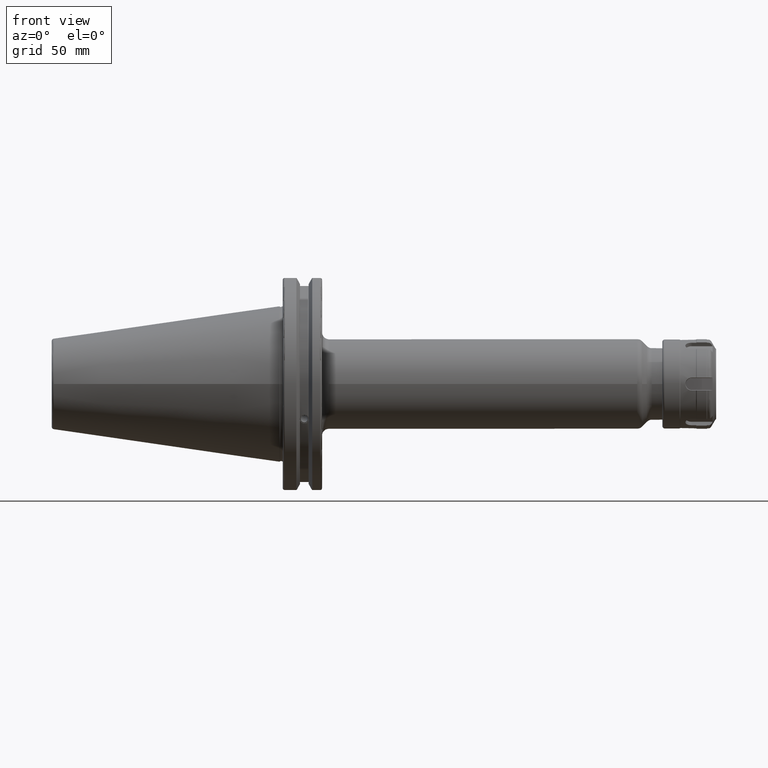
[diagram: clean part render]
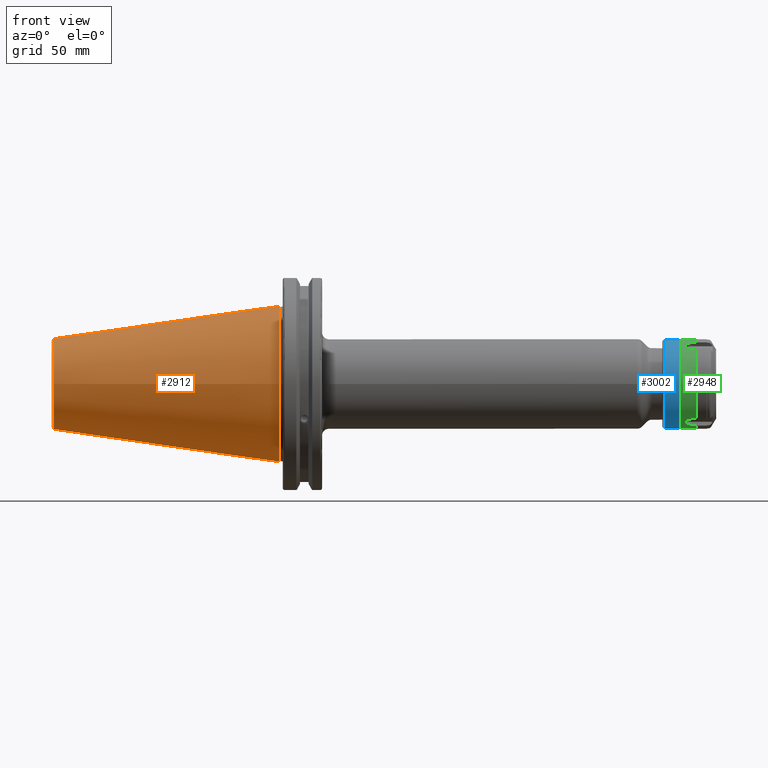
[diagram: same view with three faces highlighted in distinct colors, each labeled with its STEP entity id]
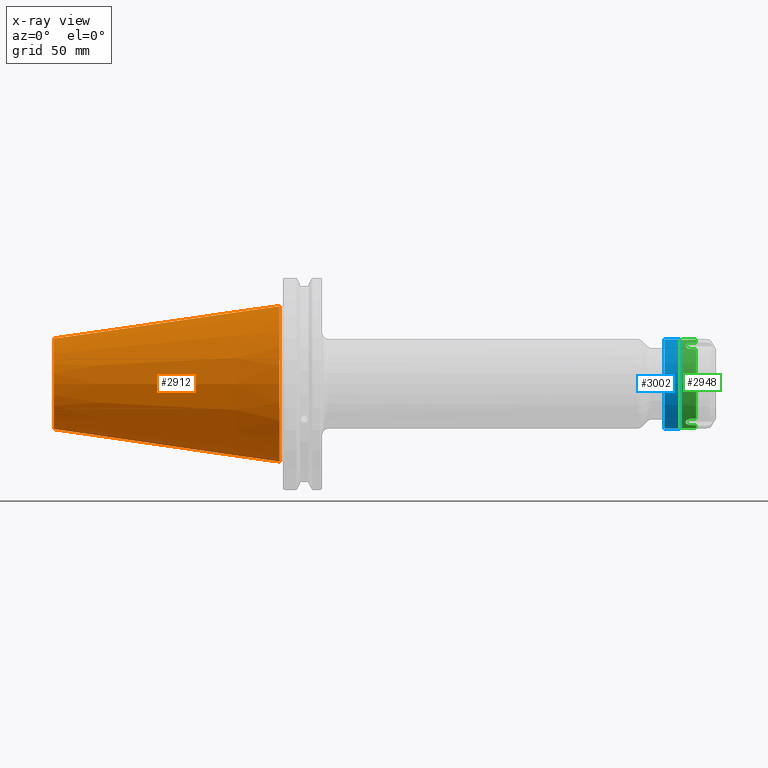
[diagram: x-ray of the same camera — body ghosted, the three highlighted faces saturated]
A machine part, front view with three faces highlighted in distinct colors.
The next image is the same camera in x-ray (body ghosted, the three faces saturated) — at least one of them is partly hidden behind the body in this view.
Their STEP definitions:

[orange] entity #2912 — the highlighted conical surface has half-angle 8.297 deg.
#251=LINE('',#5191,#447);
#447=VECTOR('',#3783,27.5166666666666);
#576=CONICAL_SURFACE('',#3221,27.5166666666666,0.14481249823894);
#748=FACE_OUTER_BOUND('',#928,.T.);
#928=EDGE_LOOP('',(#2289,#2290,#2291,#2292,#2293));
#1109=CIRCLE('',#3215,20.233121911427);
#1110=CIRCLE('',#3216,20.233121911427);
#1114=CIRCLE('',#3222,34.925);
#1339=VERTEX_POINT('',#5178);
#1340=VERTEX_POINT('',#5179);
#1343=VERTEX_POINT('',#5189);
#1692=EDGE_CURVE('',#1339,#1340,#1109,.T.);
#1693=EDGE_CURVE('',#1340,#1339,#1110,.T.);
#1697=EDGE_CURVE('',#1343,#1343,#1114,.T.);
#1698=EDGE_CURVE('',#1343,#1340,#251,.T.);
#2289=ORIENTED_EDGE('',*,*,#1697,.F.);
#2290=ORIENTED_EDGE('',*,*,#1698,.T.);
#2291=ORIENTED_EDGE('',*,*,#1692,.F.);
#2292=ORIENTED_EDGE('',*,*,#1693,.F.);
#2293=ORIENTED_EDGE('',*,*,#1698,.F.);
#2912=ADVANCED_FACE('',(#748),#576,.T.);
#3215=AXIS2_PLACEMENT_3D('',#5180,#3767,#3768);
#3216=AXIS2_PLACEMENT_3D('',#5181,#3769,#3770);
#3221=AXIS2_PLACEMENT_3D('',#5188,#3779,#3780);
#3222=AXIS2_PLACEMENT_3D('',#5190,#3781,#3782);
#3767=DIRECTION('center_axis',(-1.,0.,0.));
#3768=DIRECTION('ref_axis',(0.,-1.,3.06161699786838E-17));
#3769=DIRECTION('center_axis',(-1.,0.,0.));
#3770=DIRECTION('ref_axis',(0.,-1.,3.06161699786838E-17));
#3779=DIRECTION('center_axis',(1.,0.,0.));
#3780=DIRECTION('ref_axis',(0.,1.,0.));
#3781=DIRECTION('center_axis',(1.,0.,0.));
#3782=DIRECTION('ref_axis',(0.,0.,-1.));
#3783=DIRECTION('',(-0.989532981063281,0.144306893071729,1.76724974695192E-17));
#5178=CARTESIAN_POINT('',(-100.744306893072,-2.47784279855872E-15,20.233121911427));
#5179=CARTESIAN_POINT('',(-100.744306893072,-20.233121911427,-2.47784279855872E-15));
#5180=CARTESIAN_POINT('Origin',(-100.744306893072,0.,-3.09730349819841E-15));
#5181=CARTESIAN_POINT('Origin',(-100.744306893072,0.,-3.09730349819841E-15));
#5188=CARTESIAN_POINT('Origin',(-50.8,0.,0.));
#5189=CARTESIAN_POINT('',(-8.88178419700125E-15,-34.925,-4.27707894602213E-15));
#5190=CARTESIAN_POINT('Origin',(0.,0.,0.));
#5191=CARTESIAN_POINT('',(-50.8,-27.5166666666666,-3.3698197756538E-15));

[blue] entity #3002 — the highlighted cylindrical surface (bore or boss wall) has radius 20 mm, axis along (-1, 0, 0).
#172=CYLINDRICAL_SURFACE('',#3399,20.);
#358=LINE('',#5820,#554);
#554=VECTOR('',#4244,20.);
#838=FACE_OUTER_BOUND('',#1025,.T.);
#1025=EDGE_LOOP('',(#2750,#2751,#2752,#2753));
#1188=CIRCLE('',#3398,20.);
#1189=CIRCLE('',#3400,20.);
#1482=VERTEX_POINT('',#5815);
#1483=VERTEX_POINT('',#5819);
#1920=EDGE_CURVE('',#1482,#1482,#1188,.T.);
#1921=EDGE_CURVE('',#1482,#1483,#358,.T.);
#1922=EDGE_CURVE('',#1483,#1483,#1189,.T.);
#2750=ORIENTED_EDGE('',*,*,#1920,.F.);
#2751=ORIENTED_EDGE('',*,*,#1921,.T.);
#2752=ORIENTED_EDGE('',*,*,#1922,.T.);
#2753=ORIENTED_EDGE('',*,*,#1921,.F.);
#3002=ADVANCED_FACE('',(#838),#172,.T.);
#3398=AXIS2_PLACEMENT_3D('',#5817,#4240,#4241);
#3399=AXIS2_PLACEMENT_3D('',#5818,#4242,#4243);
#3400=AXIS2_PLACEMENT_3D('',#5821,#4245,#4246);
#4240=DIRECTION('center_axis',(1.,0.,0.));
#4241=DIRECTION('ref_axis',(0.,1.,0.));
#4242=DIRECTION('center_axis',(1.,0.,0.));
#4243=DIRECTION('ref_axis',(0.,-1.,0.));
#4244=DIRECTION('',(-1.,0.,0.));
#4245=DIRECTION('center_axis',(1.,0.,0.));
#4246=DIRECTION('ref_axis',(0.,1.,0.));
#5815=CARTESIAN_POINT('',(23.,20.,2.44929359829471E-15));
#5817=CARTESIAN_POINT('Origin',(23.,0.,0.));
#5818=CARTESIAN_POINT('Origin',(-1.2,0.,0.));
#5819=CARTESIAN_POINT('',(16.34641016151,20.,2.44929359829471E-15));
#5820=CARTESIAN_POINT('',(-1.2,20.,2.44929359829471E-15));
#5821=CARTESIAN_POINT('Origin',(16.34641016151,0.,0.));

[green] entity #2948 — the highlighted cylindrical surface (bore or boss wall) has radius 19.8 mm, axis along (-1, 0, 0).
#118=B_SPLINE_CURVE_WITH_KNOTS('',3,(#5437,#5438,#5439,#5440,#5441,#5442,
#5443,#5444,#5445,#5446),.UNSPECIFIED.,.F.,.F.,(4,2,2,2,4),(0.438672255739738,
0.548420928480743,0.658169601221749,0.767757056350612,0.877344511479476),
 .UNSPECIFIED.);
#119=B_SPLINE_CURVE_WITH_KNOTS('',3,(#5454,#5455,#5456,#5457,#5458,#5459,
#5460,#5461,#5462,#5463,#5464,#5465,#5466,#5467,#5468,#5469,#5470,#5471),
 .UNSPECIFIED.,.F.,.F.,(4,2,2,2,2,2,2,2,4),(-2.46420310850344E-8,0.109587439001204,
0.21917490264444,0.328923583912342,0.438672265180244,0.548420946448147,
0.658169627716049,0.767757091359283,0.877344555002517),.UNSPECIFIED.);
#120=B_SPLINE_CURVE_WITH_KNOTS('',3,(#5479,#5480,#5481,#5482,#5483,#5484,
#5485,#5486,#5487,#5488,#5489,#5490,#5491,#5492,#5493,#5494,#5495,#5496),
 .UNSPECIFIED.,.F.,.F.,(4,2,2,2,2,2,2,2,4),(-2.46420308630507E-8,0.109587439001203,
0.219174902644436,0.328923583912339,0.438672265180242,0.548420946448144,
0.658169627716046,0.767757091359282,0.877344555002517),.UNSPECIFIED.);
#121=B_SPLINE_CURVE_WITH_KNOTS('',3,(#5504,#5505,#5506,#5507,#5508,#5509,
#5510,#5511,#5512,#5513,#5514,#5515,#5516,#5517,#5518,#5519,#5520,#5521),
 .UNSPECIFIED.,.F.,.F.,(4,2,2,2,2,2,2,2,4),(-0.877344538842361,-0.767757078464627,
-0.658169618086892,-0.548420940089294,-0.438672262091695,-0.328923584094097,
-0.219174906096499,-0.109587445718764,1.46589702598732E-8),
 .UNSPECIFIED.);
#122=B_SPLINE_CURVE_WITH_KNOTS('',3,(#5529,#5530,#5531,#5532,#5533,#5534,
#5535,#5536,#5537,#5538,#5539,#5540,#5541,#5542,#5543,#5544,#5545,#5546),
 .UNSPECIFIED.,.F.,.F.,(4,2,2,2,2,2,2,2,4),(-2.46420304189006E-8,0.109587439001205,
0.21917490264444,0.328923583912343,0.438672265180245,0.548420946448148,
0.65816962771605,0.767757091359284,0.877344555002518),.UNSPECIFIED.);
#123=B_SPLINE_CURVE_WITH_KNOTS('',3,(#5553,#5554,#5555,#5556,#5557,#5558,
#5559,#5560,#5561,#5562,#5563,#5564,#5565,#5566,#5567,#5568,#5569,#5570),
 .UNSPECIFIED.,.F.,.F.,(4,2,2,2,2,2,2,2,4),(-2.46420301969169E-8,0.109587439001203,
0.219174902644437,0.32892358391234,0.438672265180242,0.548420946448145,
0.658169627716047,0.767757091359282,0.877344555002518),.UNSPECIFIED.);
#124=B_SPLINE_CURVE_WITH_KNOTS('',3,(#5575,#5576,#5577,#5578,#5579,#5580,
#5581,#5582,#5583,#5584),.UNSPECIFIED.,.F.,.F.,(4,2,2,2,4),(0.,0.109587455128863,
0.219174910257727,0.328923582998732,0.438672255739738),.UNSPECIFIED.);
#154=CYLINDRICAL_SURFACE('',#3285,19.8);
#276=LINE('',#5418,#472);
#283=LINE('',#5435,#479);
#284=LINE('',#5448,#480);
#285=LINE('',#5452,#481);
#286=LINE('',#5473,#482);
#287=LINE('',#5477,#483);
#288=LINE('',#5498,#484);
#289=LINE('',#5502,#485);
#290=LINE('',#5523,#486);
#291=LINE('',#5527,#487);
#292=LINE('',#5548,#488);
#293=LINE('',#5552,#489);
#294=LINE('',#5574,#490);
#472=VECTOR('',#3930,1.849999564767);
#479=VECTOR('',#3943,19.8);
#480=VECTOR('',#3944,1.849999999999);
#481=VECTOR('',#3947,1.849999753578);
#482=VECTOR('',#3948,1.849999564767);
#483=VECTOR('',#3951,1.849999753578);
#484=VECTOR('',#3952,1.849999564767);
#485=VECTOR('',#3955,1.84999985341);
#486=VECTOR('',#3956,1.849999726372);
#487=VECTOR('',#3959,1.849999753578);
#488=VECTOR('',#3960,1.849999564767);
#489=VECTOR('',#3963,1.849999753578);
#490=VECTOR('',#3966,1.849999999999);
#784=FACE_OUTER_BOUND('',#967,.T.);
#967=EDGE_LOOP('',(#2483,#2484,#2485,#2486,#2487,#2488,#2489,#2490,#2491,
#2492,#2493,#2494,#2495,#2496,#2497,#2498,#2499,#2500,#2501,#2502,#2503,
#2504,#2505,#2506,#2507,#2508,#2509,#2510));
#1140=CIRCLE('',#3286,19.8);
#1141=CIRCLE('',#3287,19.8);
#1142=CIRCLE('',#3288,19.8);
#1143=CIRCLE('',#3289,19.8);
#1144=CIRCLE('',#3290,19.8);
#1145=CIRCLE('',#3291,19.8);
#1146=CIRCLE('',#3292,19.8);
#1388=VERTEX_POINT('',#5416);
#1389=VERTEX_POINT('',#5417);
#1395=VERTEX_POINT('',#5432);
#1396=VERTEX_POINT('',#5434);
#1397=VERTEX_POINT('',#5436);
#1398=VERTEX_POINT('',#5447);
#1399=VERTEX_POINT('',#5449);
#1400=VERTEX_POINT('',#5451);
#1401=VERTEX_POINT('',#5453);
#1402=VERTEX_POINT('',#5472);
#1403=VERTEX_POINT('',#5474);
#1404=VERTEX_POINT('',#5476);
#1405=VERTEX_POINT('',#5478);
#1406=VERTEX_POINT('',#5497);
#1407=VERTEX_POINT('',#5499);
#1408=VERTEX_POINT('',#5501);
#1409=VERTEX_POINT('',#5503);
#1410=VERTEX_POINT('',#5522);
#1411=VERTEX_POINT('',#5524);
#1412=VERTEX_POINT('',#5526);
#1413=VERTEX_POINT('',#5528);
#1414=VERTEX_POINT('',#5547);
#1415=VERTEX_POINT('',#5549);
#1416=VERTEX_POINT('',#5551);
#1417=VERTEX_POINT('',#5571);
#1418=VERTEX_POINT('',#5573);
#1771=EDGE_CURVE('',#1388,#1389,#276,.T.);
#1779=EDGE_CURVE('',#1395,#1395,#1140,.T.);
#1780=EDGE_CURVE('',#1395,#1396,#283,.T.);
#1781=EDGE_CURVE('',#1396,#1397,#118,.T.);
#1782=EDGE_CURVE('',#1398,#1397,#284,.T.);
#1783=EDGE_CURVE('',#1398,#1399,#1141,.T.);
#1784=EDGE_CURVE('',#1399,#1400,#285,.T.);
#1785=EDGE_CURVE('',#1400,#1401,#119,.T.);
#1786=EDGE_CURVE('',#1402,#1401,#286,.T.);
#1787=EDGE_CURVE('',#1402,#1403,#1142,.T.);
#1788=EDGE_CURVE('',#1403,#1404,#287,.T.);
#1789=EDGE_CURVE('',#1404,#1405,#120,.T.);
#1790=EDGE_CURVE('',#1406,#1405,#288,.T.);
#1791=EDGE_CURVE('',#1406,#1407,#1143,.T.);
#1792=EDGE_CURVE('',#1407,#1408,#289,.T.);
#1793=EDGE_CURVE('',#1408,#1409,#121,.F.);
#1794=EDGE_CURVE('',#1410,#1409,#290,.T.);
#1795=EDGE_CURVE('',#1411,#1410,#1144,.T.);
#1796=EDGE_CURVE('',#1411,#1412,#291,.T.);
#1797=EDGE_CURVE('',#1412,#1413,#122,.T.);
#1798=EDGE_CURVE('',#1414,#1413,#292,.T.);
#1799=EDGE_CURVE('',#1415,#1414,#1145,.T.);
#1800=EDGE_CURVE('',#1415,#1416,#293,.T.);
#1801=EDGE_CURVE('',#1416,#1389,#123,.T.);
#1802=EDGE_CURVE('',#1417,#1388,#1146,.T.);
#1803=EDGE_CURVE('',#1417,#1418,#294,.T.);
#1804=EDGE_CURVE('',#1418,#1396,#124,.T.);
#2483=ORIENTED_EDGE('',*,*,#1779,.T.);
#2484=ORIENTED_EDGE('',*,*,#1780,.T.);
#2485=ORIENTED_EDGE('',*,*,#1781,.T.);
#2486=ORIENTED_EDGE('',*,*,#1782,.F.);
#2487=ORIENTED_EDGE('',*,*,#1783,.T.);
#2488=ORIENTED_EDGE('',*,*,#1784,.T.);
#2489=ORIENTED_EDGE('',*,*,#1785,.T.);
#2490=ORIENTED_EDGE('',*,*,#1786,.F.);
#2491=ORIENTED_EDGE('',*,*,#1787,.T.);
#2492=ORIENTED_EDGE('',*,*,#1788,.T.);
#2493=ORIENTED_EDGE('',*,*,#1789,.T.);
#2494=ORIENTED_EDGE('',*,*,#1790,.F.);
#2495=ORIENTED_EDGE('',*,*,#1791,.T.);
#2496=ORIENTED_EDGE('',*,*,#1792,.T.);
#2497=ORIENTED_EDGE('',*,*,#1793,.T.);
#2498=ORIENTED_EDGE('',*,*,#1794,.F.);
#2499=ORIENTED_EDGE('',*,*,#1795,.F.);
#2500=ORIENTED_EDGE('',*,*,#1796,.T.);
#2501=ORIENTED_EDGE('',*,*,#1797,.T.);
#2502=ORIENTED_EDGE('',*,*,#1798,.F.);
#2503=ORIENTED_EDGE('',*,*,#1799,.F.);
#2504=ORIENTED_EDGE('',*,*,#1800,.T.);
#2505=ORIENTED_EDGE('',*,*,#1801,.T.);
#2506=ORIENTED_EDGE('',*,*,#1771,.F.);
#2507=ORIENTED_EDGE('',*,*,#1802,.F.);
#2508=ORIENTED_EDGE('',*,*,#1803,.T.);
#2509=ORIENTED_EDGE('',*,*,#1804,.T.);
#2510=ORIENTED_EDGE('',*,*,#1780,.F.);
#2948=ADVANCED_FACE('',(#784),#154,.T.);
#3285=AXIS2_PLACEMENT_3D('',#5431,#3939,#3940);
#3286=AXIS2_PLACEMENT_3D('',#5433,#3941,#3942);
#3287=AXIS2_PLACEMENT_3D('',#5450,#3945,#3946);
#3288=AXIS2_PLACEMENT_3D('',#5475,#3949,#3950);
#3289=AXIS2_PLACEMENT_3D('',#5500,#3953,#3954);
#3290=AXIS2_PLACEMENT_3D('',#5525,#3957,#3958);
#3291=AXIS2_PLACEMENT_3D('',#5550,#3961,#3962);
#3292=AXIS2_PLACEMENT_3D('',#5572,#3964,#3965);
#3930=DIRECTION('',(1.,2.196665468829E-9,-3.137164059966E-9));
#3939=DIRECTION('center_axis',(1.,0.,0.));
#3940=DIRECTION('ref_axis',(0.,-1.,0.));
#3941=DIRECTION('center_axis',(-1.,0.,0.));
#3942=DIRECTION('ref_axis',(0.,1.,0.));
#3943=DIRECTION('',(-1.,0.,0.));
#3944=DIRECTION('',(1.,0.,0.));
#3945=DIRECTION('center_axis',(1.,0.,0.));
#3946=DIRECTION('ref_axis',(0.,0.989234003049567,0.146342363007195));
#3947=DIRECTION('',(1.,1.24368616069E-9,1.776170798568E-9));
#3948=DIRECTION('',(1.,1.618530795576E-9,3.470950230352E-9));
#3949=DIRECTION('center_axis',(1.,0.,0.));
#3950=DIRECTION('ref_axis',(0.,0.3678807975107,0.929872958431899));
#3951=DIRECTION('',(1.,-9.163640437412E-10,1.965148306052E-9));
#3952=DIRECTION('',(1.,-2.196667389215E-9,3.137163099773E-9));
#3953=DIRECTION('center_axis',(1.,0.,0.));
#3954=DIRECTION('ref_axis',(0.,-0.621353205538823,0.783530595424729));
#3955=DIRECTION('',(1.,-1.20135694703E-9,1.051048820816E-10));
#3956=DIRECTION('',(1.,-2.253960955125E-9,-1.971965225354E-10));
#3957=DIRECTION('center_axis',(-1.,0.,0.));
#3958=DIRECTION('ref_axis',(0.,-0.621353205538823,-0.783530595424729));
#3959=DIRECTION('',(1.,-1.243683280111E-9,-1.776167917989E-9));
#3960=DIRECTION('',(1.,-1.618529355286E-9,-3.470952150738E-9));
#3961=DIRECTION('center_axis',(-1.,0.,0.));
#3962=DIRECTION('ref_axis',(0.,0.3678807975107,-0.929872958431899));
#3963=DIRECTION('',(1.,9.163626034516E-10,-1.965146385665E-9));
#3964=DIRECTION('center_axis',(-1.,0.,0.));
#3965=DIRECTION('ref_axis',(0.,0.989234003049567,-0.146342363007195));
#3966=DIRECTION('',(1.,0.,0.));
#5416=CARTESIAN_POINT('',(9.000000000001,12.30279346967,-15.51390578941));
#5417=CARTESIAN_POINT('',(10.8499995647688,12.302793471566,-15.5139057921176));
#5418=CARTESIAN_POINT('',(9.000000000001,12.30279346967,-15.51390578941));
#5431=CARTESIAN_POINT('Origin',(-1.2,0.,0.));
#5432=CARTESIAN_POINT('',(16.,19.8,2.42480066231176E-15));
#5433=CARTESIAN_POINT('Origin',(16.,0.,0.));
#5434=CARTESIAN_POINT('',(13.7662284606996,19.8,1.28178927019495E-15));
#5435=CARTESIAN_POINT('',(-1.2,19.8,2.42480066231176E-15));
#5436=CARTESIAN_POINT('',(10.85,19.58683326038,2.897578787542));
#5437=CARTESIAN_POINT('Ctrl Pts',(13.7662284606996,19.8,2.77555756156289E-16));
#5438=CARTESIAN_POINT('Ctrl Pts',(13.7662284606996,19.8,0.365828909136686));
#5439=CARTESIAN_POINT('Ctrl Pts',(13.6922409651119,19.7888260840001,0.755406408458168));
#5440=CARTESIAN_POINT('Ctrl Pts',(13.3927967707882,19.7485606217989,1.47058830764169));
#5441=CARTESIAN_POINT('Ctrl Pts',(13.167382104288,19.7200430935425,1.79624250738127));
#5442=CARTESIAN_POINT('Ctrl Pts',(12.6491339359066,19.6665735397372,2.30917224958792));
#5443=CARTESIAN_POINT('Ctrl Pts',(12.3217476724158,19.6381254630146,2.53102182956664));
#5444=CARTESIAN_POINT('Ctrl Pts',(11.6048458124816,19.597961771536,2.82523232074532));
#5445=CARTESIAN_POINT('Ctrl Pts',(11.2152915170962,19.5868332603815,2.89757878754222));
#5446=CARTESIAN_POINT('Ctrl Pts',(10.85,19.5868332603815,2.89757878754222));
#5447=CARTESIAN_POINT('',(9.000000000001,19.58683326038,2.897578787542));
#5448=CARTESIAN_POINT('',(9.000000000001,19.58683326038,2.897578787542));
#5449=CARTESIAN_POINT('',(9.000000000001,12.30279346967,15.51390578941));
#5450=CARTESIAN_POINT('Origin',(9.000000000001,0.,0.));
#5451=CARTESIAN_POINT('',(10.8499997535797,12.3027934707794,15.5139057909941));
#5452=CARTESIAN_POINT('',(9.000000000001,12.30279346967,15.51390578941));
#5453=CARTESIAN_POINT('',(10.8499995647688,7.2840397921096,18.4114845799472));
#5454=CARTESIAN_POINT('Ctrl Pts',(10.8499997535797,12.3027934696677,15.5139057894104));
#5455=CARTESIAN_POINT('Ctrl Pts',(11.2152912706759,12.3027934939591,15.5139057701469));
#5456=CARTESIAN_POINT('Ctrl Pts',(11.6048458124816,12.2457038471248,15.559716596175));
#5457=CARTESIAN_POINT('Ctrl Pts',(12.3217476724157,12.0109919334435,15.7416046188945));
#5458=CARTESIAN_POINT('Ctrl Pts',(12.6491339359065,11.8330885997243,15.8771661660144));
#5459=CARTESIAN_POINT('Ctrl Pts',(13.1673821042878,11.4156131895194,16.1799370290421));
#5460=CARTESIAN_POINT('Ctrl Pts',(13.392796770788,11.1478471438241,16.367461032835));
#5461=CARTESIAN_POINT('Ctrl Pts',(13.6922409651117,10.5486141819049,16.7599228955881));
#5462=CARTESIAN_POINT('Ctrl Pts',(13.7662284606994,10.2168171287497,16.9643885403644));
#5463=CARTESIAN_POINT('Ctrl Pts',(13.7662284606994,9.58318287124747,17.330217449501));
#5464=CARTESIAN_POINT('Ctrl Pts',(13.6922409651116,9.24021190209232,17.5153293040461));
#5465=CARTESIAN_POINT('Ctrl Pts',(13.392796770788,8.60071347797203,17.8380493404764));
#5466=CARTESIAN_POINT('Ctrl Pts',(13.1673821042878,8.30442990402025,17.9761795364229));
#5467=CARTESIAN_POINT('Ctrl Pts',(12.6491339359064,7.83348494001009,18.1863384156018));
#5468=CARTESIAN_POINT('Ctrl Pts',(12.3217476724156,7.62713352956832,18.2726264484606));
#5469=CARTESIAN_POINT('Ctrl Pts',(11.6048458124816,7.35225792440838,18.3849489169196));
#5470=CARTESIAN_POINT('Ctrl Pts',(11.2152915170962,7.28403979071096,18.4114845769519));
#5471=CARTESIAN_POINT('Ctrl Pts',(10.85,7.28403979071096,18.4114845769519));
#5472=CARTESIAN_POINT('',(9.000000000001,7.284039790713,18.41148457695));
#5473=CARTESIAN_POINT('',(9.000000000001,7.284039790713,18.41148457695));
#5474=CARTESIAN_POINT('',(9.000000000001,-7.284039790713,18.41148457695));
#5475=CARTESIAN_POINT('Origin',(9.000000000001,0.,0.));
#5476=CARTESIAN_POINT('',(10.8499997535797,-7.28403979152998,18.4114845787042));
#5477=CARTESIAN_POINT('',(9.000000000001,-7.284039790713,18.41148457695));
#5478=CARTESIAN_POINT('',(10.8499995647688,-12.302793471566,15.5139057921176));
#5479=CARTESIAN_POINT('Ctrl Pts',(10.8499997535797,-7.28403979071097,18.4114845769519));
#5480=CARTESIAN_POINT('Ctrl Pts',(11.2152912706759,-7.28403976188256,18.4114845883572));
#5481=CARTESIAN_POINT('Ctrl Pts',(11.6048458124816,-7.35225792440838,18.3849489169196));
#5482=CARTESIAN_POINT('Ctrl Pts',(12.3217476724156,-7.62713352956832,18.2726264484606));
#5483=CARTESIAN_POINT('Ctrl Pts',(12.6491339359064,-7.83348494001009,18.1863384156018));
#5484=CARTESIAN_POINT('Ctrl Pts',(13.1673821042878,-8.30442990402025,17.9761795364229));
#5485=CARTESIAN_POINT('Ctrl Pts',(13.392796770788,-8.60071347797203,17.8380493404764));
#5486=CARTESIAN_POINT('Ctrl Pts',(13.6922409651116,-9.24021190209232,17.5153293040461));
#5487=CARTESIAN_POINT('Ctrl Pts',(13.7662284606994,-9.58318287124747,17.330217449501));
#5488=CARTESIAN_POINT('Ctrl Pts',(13.7662284606994,-10.2168171287497,16.9643885403644));
#5489=CARTESIAN_POINT('Ctrl Pts',(13.6922409651117,-10.5486141819049,16.7599228955881));
#5490=CARTESIAN_POINT('Ctrl Pts',(13.392796770788,-11.1478471438241,16.367461032835));
#5491=CARTESIAN_POINT('Ctrl Pts',(13.1673821042878,-11.4156131895194,16.1799370290421));
#5492=CARTESIAN_POINT('Ctrl Pts',(12.6491339359065,-11.8330885997243,15.8771661660144));
#5493=CARTESIAN_POINT('Ctrl Pts',(12.3217476724157,-12.0109919334435,15.7416046188945));
#5494=CARTESIAN_POINT('Ctrl Pts',(11.6048458124816,-12.2457038471248,15.559716596175));
#5495=CARTESIAN_POINT('Ctrl Pts',(11.2152915170962,-12.3027934696677,15.5139057894104));
#5496=CARTESIAN_POINT('Ctrl Pts',(10.85,-12.3027934696677,15.5139057894104));
#5497=CARTESIAN_POINT('',(9.000000000001,-12.30279346967,15.51390578941));
#5498=CARTESIAN_POINT('',(9.000000000001,-12.30279346967,15.51390578941));
#5499=CARTESIAN_POINT('',(9.000000000001,-19.58683326038,2.897578787542));
#5500=CARTESIAN_POINT('Origin',(9.000000000001,0.,0.));
#5501=CARTESIAN_POINT('',(10.8499998534103,-19.5868332612079,2.8975787875897));
#5502=CARTESIAN_POINT('',(9.000000000001,-19.58683326038,2.897578787542));
#5503=CARTESIAN_POINT('',(10.8499997263711,-19.5868332617272,-2.89757878761964));
#5504=CARTESIAN_POINT('Ctrl Pts',(10.85,-19.5868332603815,-2.89757878754222));
#5505=CARTESIAN_POINT('Ctrl Pts',(11.2152915170962,-19.5868332553435,-2.89757882159726));
#5506=CARTESIAN_POINT('Ctrl Pts',(11.6048458124816,-19.597961771536,-2.82523232074532));
#5507=CARTESIAN_POINT('Ctrl Pts',(12.3217476724158,-19.6381254630146,-2.53102182956664));
#5508=CARTESIAN_POINT('Ctrl Pts',(12.6491339359066,-19.6665735397372,-2.30917224958792));
#5509=CARTESIAN_POINT('Ctrl Pts',(13.167382104288,-19.7200430935425,-1.79624250738127));
#5510=CARTESIAN_POINT('Ctrl Pts',(13.3927967707882,-19.7485606217989,-1.47058830764169));
#5511=CARTESIAN_POINT('Ctrl Pts',(13.6922409651119,-19.7888260840001,-0.755406408458168));
#5512=CARTESIAN_POINT('Ctrl Pts',(13.7662284606996,-19.8,-0.365828909136685));
#5513=CARTESIAN_POINT('Ctrl Pts',(13.7662284606996,-19.8,0.365828909136685));
#5514=CARTESIAN_POINT('Ctrl Pts',(13.6922409651119,-19.7888260840001,0.755406408458167));
#5515=CARTESIAN_POINT('Ctrl Pts',(13.3927967707882,-19.7485606217989,1.47058830764169));
#5516=CARTESIAN_POINT('Ctrl Pts',(13.167382104288,-19.7200430935425,1.79624250738127));
#5517=CARTESIAN_POINT('Ctrl Pts',(12.6491339359066,-19.6665735397372,2.30917224958792));
#5518=CARTESIAN_POINT('Ctrl Pts',(12.3217476724158,-19.6381254630146,2.53102182956664));
#5519=CARTESIAN_POINT('Ctrl Pts',(11.6048458124816,-19.597961771536,2.82523232074532));
#5520=CARTESIAN_POINT('Ctrl Pts',(11.2152915170962,-19.5868332603815,2.89757878754222));
#5521=CARTESIAN_POINT('Ctrl Pts',(10.85,-19.5868332603815,2.89757878754222));
#5522=CARTESIAN_POINT('',(9.000000000001,-19.58683326038,-2.897578787542));
#5523=CARTESIAN_POINT('',(9.000000000001,-19.58683326038,-2.897578787542));
#5524=CARTESIAN_POINT('',(9.000000000001,-12.30279346967,-15.51390578941));
#5525=CARTESIAN_POINT('Origin',(9.000000000001,0.,0.));
#5526=CARTESIAN_POINT('',(10.8499997535797,-12.3027934707794,-15.5139057909941));
#5527=CARTESIAN_POINT('',(9.000000000001,-12.30279346967,-15.51390578941));
#5528=CARTESIAN_POINT('',(10.8499995647688,-7.2840397921096,-18.4114845799472));
#5529=CARTESIAN_POINT('Ctrl Pts',(10.8499997535797,-12.3027934696677,-15.5139057894104));
#5530=CARTESIAN_POINT('Ctrl Pts',(11.2152912706759,-12.3027934939591,-15.5139057701469));
#5531=CARTESIAN_POINT('Ctrl Pts',(11.6048458124816,-12.2457038471248,-15.559716596175));
#5532=CARTESIAN_POINT('Ctrl Pts',(12.3217476724157,-12.0109919334435,-15.7416046188945));
#5533=CARTESIAN_POINT('Ctrl Pts',(12.6491339359065,-11.8330885997243,-15.8771661660144));
#5534=CARTESIAN_POINT('Ctrl Pts',(13.1673821042878,-11.4156131895194,-16.1799370290421));
#5535=CARTESIAN_POINT('Ctrl Pts',(13.392796770788,-11.1478471438241,-16.367461032835));
#5536=CARTESIAN_POINT('Ctrl Pts',(13.6922409651117,-10.5486141819049,-16.7599228955881));
#5537=CARTESIAN_POINT('Ctrl Pts',(13.7662284606994,-10.2168171287497,-16.9643885403644));
#5538=CARTESIAN_POINT('Ctrl Pts',(13.7662284606994,-9.58318287124747,-17.330217449501));
#5539=CARTESIAN_POINT('Ctrl Pts',(13.6922409651116,-9.24021190209232,-17.5153293040461));
#5540=CARTESIAN_POINT('Ctrl Pts',(13.392796770788,-8.60071347797203,-17.8380493404764));
#5541=CARTESIAN_POINT('Ctrl Pts',(13.1673821042878,-8.30442990402025,-17.9761795364229));
#5542=CARTESIAN_POINT('Ctrl Pts',(12.6491339359064,-7.83348494001009,-18.1863384156018));
#5543=CARTESIAN_POINT('Ctrl Pts',(12.3217476724156,-7.62713352956832,-18.2726264484606));
#5544=CARTESIAN_POINT('Ctrl Pts',(11.6048458124816,-7.35225792440838,-18.3849489169196));
#5545=CARTESIAN_POINT('Ctrl Pts',(11.2152915170962,-7.28403979071096,-18.4114845769519));
#5546=CARTESIAN_POINT('Ctrl Pts',(10.85,-7.28403979071096,-18.4114845769519));
#5547=CARTESIAN_POINT('',(9.000000000001,-7.284039790713,-18.41148457695));
#5548=CARTESIAN_POINT('',(9.000000000001,-7.284039790713,-18.41148457695));
#5549=CARTESIAN_POINT('',(9.000000000001,7.284039790713,-18.41148457695));
#5550=CARTESIAN_POINT('Origin',(9.000000000001,0.,0.));
#5551=CARTESIAN_POINT('',(10.8499997535797,7.28403979152998,-18.4114845787042));
#5552=CARTESIAN_POINT('',(9.000000000001,7.284039790713,-18.41148457695));
#5553=CARTESIAN_POINT('Ctrl Pts',(10.8499997535797,7.28403979071097,-18.4114845769519));
#5554=CARTESIAN_POINT('Ctrl Pts',(11.2152912706759,7.28403976188257,-18.4114845883572));
#5555=CARTESIAN_POINT('Ctrl Pts',(11.6048458124816,7.35225792440838,-18.3849489169196));
#5556=CARTESIAN_POINT('Ctrl Pts',(12.3217476724156,7.62713352956832,-18.2726264484606));
#5557=CARTESIAN_POINT('Ctrl Pts',(12.6491339359064,7.83348494001009,-18.1863384156018));
#5558=CARTESIAN_POINT('Ctrl Pts',(13.1673821042878,8.30442990402025,-17.9761795364229));
#5559=CARTESIAN_POINT('Ctrl Pts',(13.392796770788,8.60071347797203,-17.8380493404764));
#5560=CARTESIAN_POINT('Ctrl Pts',(13.6922409651116,9.24021190209232,-17.5153293040461));
#5561=CARTESIAN_POINT('Ctrl Pts',(13.7662284606994,9.58318287124747,-17.330217449501));
#5562=CARTESIAN_POINT('Ctrl Pts',(13.7662284606994,10.2168171287497,-16.9643885403644));
#5563=CARTESIAN_POINT('Ctrl Pts',(13.6922409651117,10.5486141819049,-16.7599228955881));
#5564=CARTESIAN_POINT('Ctrl Pts',(13.392796770788,11.1478471438241,-16.367461032835));
#5565=CARTESIAN_POINT('Ctrl Pts',(13.1673821042878,11.4156131895194,-16.1799370290421));
#5566=CARTESIAN_POINT('Ctrl Pts',(12.6491339359065,11.8330885997243,-15.8771661660144));
#5567=CARTESIAN_POINT('Ctrl Pts',(12.3217476724157,12.0109919334435,-15.7416046188945));
#5568=CARTESIAN_POINT('Ctrl Pts',(11.6048458124816,12.2457038471248,-15.559716596175));
#5569=CARTESIAN_POINT('Ctrl Pts',(11.2152915170962,12.3027934696677,-15.5139057894104));
#5570=CARTESIAN_POINT('Ctrl Pts',(10.85,12.3027934696677,-15.5139057894104));
#5571=CARTESIAN_POINT('',(9.000000000001,19.58683326038,-2.897578787542));
#5572=CARTESIAN_POINT('Origin',(9.000000000001,0.,0.));
#5573=CARTESIAN_POINT('',(10.85,19.58683326038,-2.897578787542));
#5574=CARTESIAN_POINT('',(9.000000000001,19.58683326038,-2.897578787542));
#5575=CARTESIAN_POINT('Ctrl Pts',(10.85,19.5868332603815,-2.89757878754222));
#5576=CARTESIAN_POINT('Ctrl Pts',(11.2152915170962,19.5868332603815,-2.89757878754222));
#5577=CARTESIAN_POINT('Ctrl Pts',(11.6048458124816,19.597961771536,-2.82523232074532));
#5578=CARTESIAN_POINT('Ctrl Pts',(12.3217476724158,19.6381254630146,-2.53102182956664));
#5579=CARTESIAN_POINT('Ctrl Pts',(12.6491339359066,19.6665735397372,-2.30917224958792));
#5580=CARTESIAN_POINT('Ctrl Pts',(13.167382104288,19.7200430935425,-1.79624250738127));
#5581=CARTESIAN_POINT('Ctrl Pts',(13.3927967707882,19.7485606217989,-1.47058830764169));
#5582=CARTESIAN_POINT('Ctrl Pts',(13.6922409651119,19.7888260840001,-0.755406408458167));
#5583=CARTESIAN_POINT('Ctrl Pts',(13.7662284606996,19.8,-0.365828909136685));
#5584=CARTESIAN_POINT('Ctrl Pts',(13.7662284606996,19.8,1.38777878078145E-16));